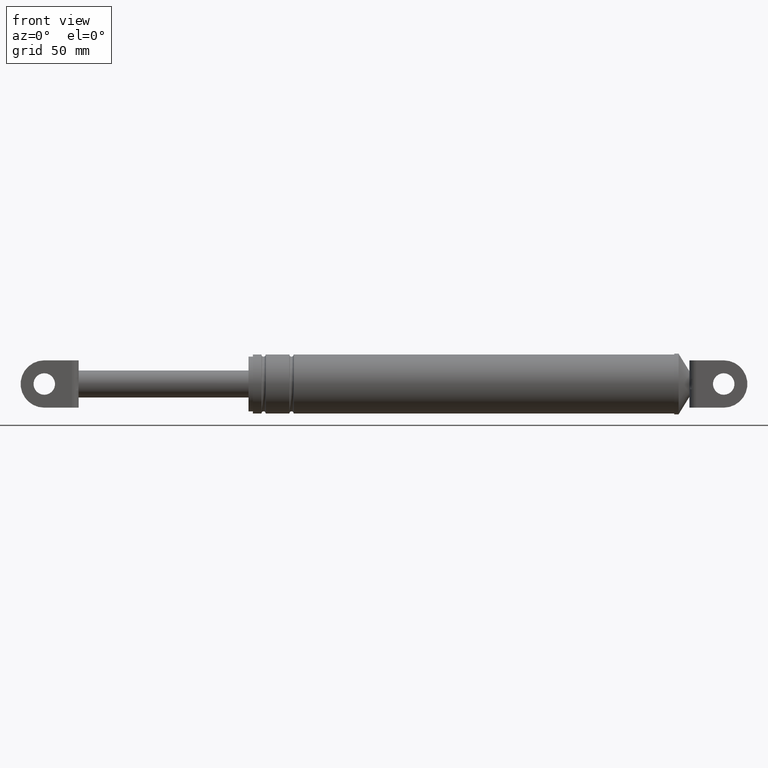
[diagram: clean part render]
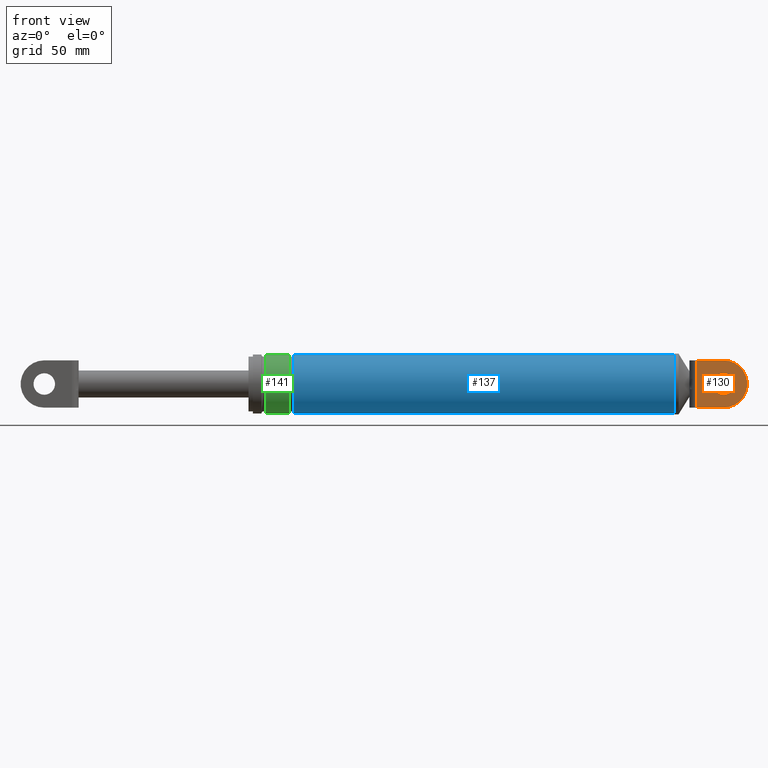
[diagram: same view with three faces highlighted in distinct colors, each labeled with its STEP entity id]
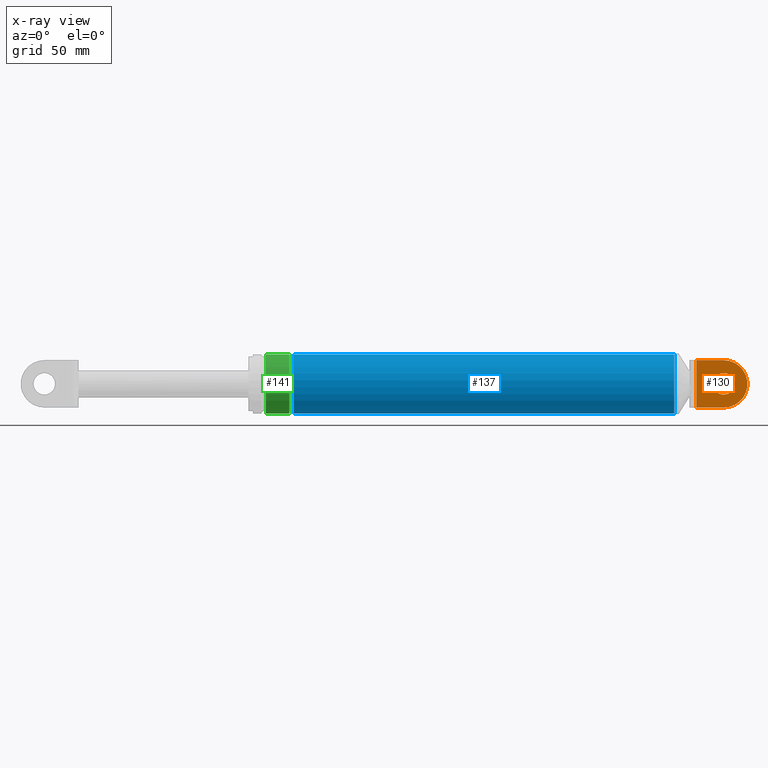
[diagram: x-ray of the same camera — body ghosted, the three highlighted faces saturated]
A machine part, front view with three faces highlighted in distinct colors.
The next image is the same camera in x-ray (body ghosted, the three faces saturated) — at least one of them is partly hidden behind the body in this view.
Their STEP definitions:

[orange] entity #130 — the highlighted planar face has unit normal (0, -1, 0).
#130=ADVANCED_FACE('',(#361,#362),#360,.T.);
#360=PLANE('',#1331);
#361=FACE_OUTER_BOUND('',#1332,.T.);
#362=FACE_BOUND('',#1333,.T.);
#1328=CARTESIAN_POINT('',(3.62948174188E+002,-8.69999700000E+000,1.74614500045E+002));
#1329=DIRECTION('',(0.00000000000E+000,-1.00000000000E+000,0.00000000000E+000));
#1330=DIRECTION('',(1.00000000000E+000,0.00000000000E+000,0.00000000000E+000));
#1331=AXIS2_PLACEMENT_3D('',#1328,#1329,#1330);
#1332=EDGE_LOOP('',(#2019,#2020,#2021,#2022,#2023,#2024));
#1333=EDGE_LOOP('',(#2025,#2026));
#2019=ORIENTED_EDGE('',*,*,#2283,.F.);
#2020=ORIENTED_EDGE('',*,*,#2264,.T.);
#2021=ORIENTED_EDGE('',*,*,#2266,.T.);
#2022=ORIENTED_EDGE('',*,*,#2269,.T.);
#2023=ORIENTED_EDGE('',*,*,#2279,.T.);
#2024=ORIENTED_EDGE('',*,*,#2252,.T.);
#2025=ORIENTED_EDGE('',*,*,#2301,.F.);
#2026=ORIENTED_EDGE('',*,*,#2302,.F.);
#2252=EDGE_CURVE('',#2474,#2467,#2475,.T.);
#2264=EDGE_CURVE('',#2536,#2550,#2557,.T.);
#2266=EDGE_CURVE('',#2550,#2564,#2571,.T.);
#2269=EDGE_CURVE('',#2564,#2583,#2591,.T.);
#2279=EDGE_CURVE('',#2583,#2474,#2654,.T.);
#2283=EDGE_CURVE('',#2536,#2467,#2680,.T.);
#2301=EDGE_CURVE('',#2801,#2802,#2803,.T.);
#2302=EDGE_CURVE('',#2802,#2801,#2809,.T.);
#2467=VERTEX_POINT('',#3476);
#2474=VERTEX_POINT('',#3480);
#2475=CIRCLE('',#3484,1.10000000000E+001);
#2536=VERTEX_POINT('',#3527);
#2550=VERTEX_POINT('',#3536);
#2557=LINE('',#3541,#3542);
#2564=VERTEX_POINT('',#3545);
#2571=(BOUNDED_CURVE() B_SPLINE_CURVE(3,(#3550,#3551,#3552,#3553,#3554,#3555,#3556,#3557,#3558,#3559),.UNSPECIFIED.,.F.,.F.) B_SPLINE_CURVE_WITH_KNOTS((4,2,2,2,4),(0.00000000000E+000,1.19890467989E-003,2.39780935978E-003,3.59671403966E-003,4.79561871955E-003),.UNSPECIFIED.) CURVE() GEOMETRIC_REPRESENTATION_ITEM() RATIONAL_B_SPLINE_CURVE((1.00000000000E+000,1.00000000000E+000,1.00000000000E+000,1.00000000000E+000,1.00000000000E+000,1.00000000000E+000,1.00000000000E+000,1.00000000000E+000,1.00000000000E+000,1.00000000000E+000)) REPRESENTATION_ITEM('') );
#2583=VERTEX_POINT('',#3564);
#2591=LINE('',#3570,#3571);
#2654=LINE('',#3605,#3606);
#2680=LINE('',#3620,#3621);
#2801=VERTEX_POINT('',#3701);
#2802=VERTEX_POINT('',#3702);
#2803=CIRCLE('',#3706,5.00000000000E+000);
#2809=CIRCLE('',#3710,5.00000000000E+000);
#3476=CARTESIAN_POINT('',(3.78171412952E+002,-8.69999700000E+000,1.98814501197E+002));
#3480=CARTESIAN_POINT('',(3.78171412952E+002,-8.69999700000E+000,1.76814501197E+002));
#3481=CARTESIAN_POINT('',(3.78171413912E+002,-8.69999700000E+000,1.87814501197E+002));
#3482=DIRECTION('',(0.00000000000E+000,-1.00000000000E+000,-0.00000000000E+000));
#3483=DIRECTION('',(-8.72664508346E-008,0.00000000000E+000,-1.00000000000E+000));
#3484=AXIS2_PLACEMENT_3D('',#3481,#3482,#3483);
#3527=CARTESIAN_POINT('',(3.65371413912E+002,-8.69999700000E+000,1.98814501197E+002));
#3536=CARTESIAN_POINT('',(3.65371413912E+002,-8.69999700000E+000,1.90212423839E+002));
#3541=CARTESIAN_POINT('',(3.65371413912E+002,-8.69999700000E+000,1.98814501197E+002));
#3542=VECTOR('',#3543,8.60207735738E+000);
#3543=DIRECTION('',(0.00000000000E+000,0.00000000000E+000,-1.00000000000E+000));
#3545=CARTESIAN_POINT('',(3.65371413912E+002,-8.69999700000E+000,1.85416578554E+002));
#3550=CARTESIAN_POINT('',(3.65371413912E+002,-8.69999700000E+000,1.90212423839E+002));
#3551=CARTESIAN_POINT('',(3.65371413912E+002,-8.69999700000E+000,1.89812767753E+002));
#3552=CARTESIAN_POINT('',(3.65359788567E+002,-8.69999700000E+000,1.89413231393E+002));
#3553=CARTESIAN_POINT('',(3.65339929641E+002,-8.69999700000E+000,1.88614123743E+002));
#3554=CARTESIAN_POINT('',(3.65332114059E+002,-8.69999700000E+000,1.88214548147E+002));
#3555=CARTESIAN_POINT('',(3.65332105072E+002,-8.69999700000E+000,1.87415236067E+002));
#3556=CARTESIAN_POINT('',(3.65339915744E+002,-8.69999700000E+000,1.87015477860E+002));
#3557=CARTESIAN_POINT('',(3.65359779216E+002,-8.69999700000E+000,1.86216107261E+002));
#3558=CARTESIAN_POINT('',(3.65371413912E+002,-8.69999700000E+000,1.85816454682E+002));
#3559=CARTESIAN_POINT('',(3.65371413912E+002,-8.69999700000E+000,1.85416578554E+002));
#3564=CARTESIAN_POINT('',(3.65371413912E+002,-8.69999700000E+000,1.76814501197E+002));
#3570=CARTESIAN_POINT('',(3.65371413912E+002,-8.69999700000E+000,1.85416578554E+002));
#3571=VECTOR('',#3572,8.60207735738E+000);
#3572=DIRECTION('',(0.00000000000E+000,0.00000000000E+000,-1.00000000000E+000));
#3605=CARTESIAN_POINT('',(3.65371413912E+002,-8.69999700000E+000,1.76814501197E+002));
#3606=VECTOR('',#3607,1.27999990401E+001);
#3607=DIRECTION('',(1.00000000000E+000,0.00000000000E+000,0.00000000000E+000));
#3620=CARTESIAN_POINT('',(3.65371413912E+002,-8.69999700000E+000,1.98814501197E+002));
#3621=VECTOR('',#3622,1.27999990401E+001);
#3622=DIRECTION('',(1.00000000000E+000,0.00000000000E+000,0.00000000000E+000));
#3701=CARTESIAN_POINT('',(3.78171413912E+002,-8.69999700000E+000,1.82814501197E+002));
#3702=CARTESIAN_POINT('',(3.78171413912E+002,-8.69999700000E+000,1.92814501197E+002));
#3703=CARTESIAN_POINT('',(3.78171413912E+002,-8.69999700000E+000,1.87814501197E+002));
#3704=DIRECTION('',(1.25607396695E-016,-1.00000000000E+000,0.00000000000E+000));
#3705=DIRECTION('',(1.22460635382E-016,1.53819616079E-032,1.00000000000E+000));
#3706=AXIS2_PLACEMENT_3D('',#3703,#3704,#3705);
#3707=CARTESIAN_POINT('',(3.78171413912E+002,-8.69999700000E+000,1.87814501197E+002));
#3708=DIRECTION('',(1.25607396695E-016,-1.00000000000E+000,0.00000000000E+000));
#3709=DIRECTION('',(1.22460635382E-016,1.53819616079E-032,1.00000000000E+000));
#3710=AXIS2_PLACEMENT_3D('',#3707,#3708,#3709);

[blue] entity #137 — the highlighted cylindrical surface (edge-blend (fillet) strip) has radius 13.7 mm, axis along (-1, 0, 0).
#137=ADVANCED_FACE('',(#433),#432,.T.);
#432=CYLINDRICAL_SURFACE('',#1380,1.37000000000E+001);
#433=FACE_OUTER_BOUND('',#1381,.T.);
#1377=CARTESIAN_POINT('',(1.68171413912E+002,5.61264061524E-014,1.87814501196E+002));
#1378=DIRECTION('',(-1.00000000000E+000,1.46694769862E-015,9.46212769247E-030));
#1379=DIRECTION('',(1.54719453813E-029,4.09681796733E-015,1.00000000000E+000));
#1380=AXIS2_PLACEMENT_3D('',#1377,#1378,#1379);
#1381=EDGE_LOOP('',(#2057,#2058,#2059,#2060));
#2057=ORIENTED_EDGE('',*,*,#2290,.T.);
#2058=ORIENTED_EDGE('',*,*,#2312,.T.);
#2059=ORIENTED_EDGE('',*,*,#2314,.F.);
#2060=ORIENTED_EDGE('',*,*,#2313,.F.);
#2290=EDGE_CURVE('',#2719,#2718,#2726,.T.);
#2312=EDGE_CURVE('',#2718,#2867,#2875,.T.);
#2313=EDGE_CURVE('',#2719,#2868,#2881,.T.);
#2314=EDGE_CURVE('',#2868,#2867,#2887,.T.);
#2718=VERTEX_POINT('',#3642);
#2719=VERTEX_POINT('',#3643);
#2726=CIRCLE('',#3651,1.37000000000E+001);
#2867=VERTEX_POINT('',#3739);
#2868=VERTEX_POINT('',#3740);
#2875=(BOUNDED_CURVE() B_SPLINE_CURVE(1,(#3745,#3746),.UNSPECIFIED.,.F.,.F.) B_SPLINE_CURVE_WITH_KNOTS((2,2),(5.07614212110E-002,9.49238578566E-001),.UNSPECIFIED.) CURVE() GEOMETRIC_REPRESENTATION_ITEM() RATIONAL_B_SPLINE_CURVE((1.00000000000E+000,1.00000000000E+000)) REPRESENTATION_ITEM('') );
#2881=(BOUNDED_CURVE() B_SPLINE_CURVE(1,(#3747,#3748),.UNSPECIFIED.,.F.,.F.) B_SPLINE_CURVE_WITH_KNOTS((2,2),(5.07614213198E-002,9.49238578680E-001),.UNSPECIFIED.) CURVE() GEOMETRIC_REPRESENTATION_ITEM() RATIONAL_B_SPLINE_CURVE((7.50000000000E-001,7.50000000000E-001)) REPRESENTATION_ITEM('') );
#2887=CIRCLE('',#3752,1.37000000000E+001);
#3642=CARTESIAN_POINT('',(3.55171413912E+002,-2.43953005944E-013,2.01514501196E+002));
#3643=CARTESIAN_POINT('',(3.55171413912E+002,5.80823664894E-015,1.74114501196E+002));
#3648=CARTESIAN_POINT('',(3.55171413912E+002,-1.17412024792E-013,1.87814501196E+002));
#3649=DIRECTION('',(-1.00000000000E+000,0.00000000000E+000,0.00000000000E+000));
#3650=DIRECTION('',(-0.00000000000E+000,9.31580824167E-015,-1.00000000000E+000));
#3651=AXIS2_PLACEMENT_3D('',#3648,#3649,#3650);
#3739=CARTESIAN_POINT('',(1.78171413912E+002,-2.43953005944E-013,2.01514501196E+002));
#3740=CARTESIAN_POINT('',(1.78171413912E+002,5.80823664894E-015,1.74114501196E+002));
#3745=CARTESIAN_POINT('',(3.55171413933E+002,-1.62066407369E-013,2.01514501196E+002));
#3746=CARTESIAN_POINT('',(1.78171413935E+002,9.75833352855E-014,2.01514501196E+002));
#3747=CARTESIAN_POINT('',(3.55171413912E+002,-2.74286327811E-013,1.74114501197E+002));
#3748=CARTESIAN_POINT('',(1.78171413912E+002,-1.46677180648E-014,1.74114501197E+002));
#3749=CARTESIAN_POINT('',(1.78171413912E+002,-1.17412024792E-013,1.87814501196E+002));
#3750=DIRECTION('',(-1.00000000000E+000,0.00000000000E+000,0.00000000000E+000));
#3751=DIRECTION('',(-0.00000000000E+000,9.31580824167E-015,-1.00000000000E+000));
#3752=AXIS2_PLACEMENT_3D('',#3749,#3750,#3751);

[green] entity #141 — the highlighted cylindrical surface (edge-blend (fillet) strip) has radius 13.7 mm, axis along (-1, 0, -0).
#141=ADVANCED_FACE('',(#473),#472,.T.);
#472=CYLINDRICAL_SURFACE('',#1442,1.37000000000E+001);
#473=FACE_OUTER_BOUND('',#1443,.T.);
#1439=CARTESIAN_POINT('',(1.64071413912E+002,1.60526971163E-014,1.87814501196E+002));
#1440=DIRECTION('',(-1.00000000000E+000,7.33473849312E-016,-6.00258385943E-031));
#1441=DIRECTION('',(2.59174719586E-031,1.17172971652E-015,1.00000000000E+000));
#1442=AXIS2_PLACEMENT_3D('',#1439,#1440,#1441);
#1443=EDGE_LOOP('',(#2073,#2074,#2075,#2076));
#2073=ORIENTED_EDGE('',*,*,#2315,.T.);
#2074=ORIENTED_EDGE('',*,*,#2320,.T.);
#2075=ORIENTED_EDGE('',*,*,#2322,.F.);
#2076=ORIENTED_EDGE('',*,*,#2321,.F.);
#2315=EDGE_CURVE('',#2893,#2894,#2895,.T.);
#2320=EDGE_CURVE('',#2894,#2919,#2927,.T.);
#2321=EDGE_CURVE('',#2893,#2920,#2933,.T.);
#2322=EDGE_CURVE('',#2920,#2919,#2939,.T.);
#2893=VERTEX_POINT('',#3753);
#2894=VERTEX_POINT('',#3754);
#2895=CIRCLE('',#3758,1.37000000000E+001);
#2919=VERTEX_POINT('',#3773);
#2920=VERTEX_POINT('',#3774);
#2927=(BOUNDED_CURVE() B_SPLINE_CURVE(1,(#3779,#3780),.UNSPECIFIED.,.F.,.F.) B_SPLINE_CURVE_WITH_KNOTS((2,2),(8.33333343261E-002,9.16666667006E-001),.UNSPECIFIED.) CURVE() GEOMETRIC_REPRESENTATION_ITEM() RATIONAL_B_SPLINE_CURVE((1.00000000000E+000,1.00000000000E+000)) REPRESENTATION_ITEM('') );
#2933=(BOUNDED_CURVE() B_SPLINE_CURVE(1,(#3781,#3782),.UNSPECIFIED.,.F.,.F.) B_SPLINE_CURVE_WITH_KNOTS((2,2),(8.33333333333E-002,9.16666666667E-001),.UNSPECIFIED.) CURVE() GEOMETRIC_REPRESENTATION_ITEM() RATIONAL_B_SPLINE_CURVE((7.50000000000E-001,7.50000000000E-001)) REPRESENTATION_ITEM('') );
#2939=CIRCLE('',#3786,1.37000000000E+001);
#3753=CARTESIAN_POINT('',(1.76171413912E+002,5.80823664894E-015,1.74114501196E+002));
#3754=CARTESIAN_POINT('',(1.76171413912E+002,-2.43953005944E-013,2.01514501196E+002));
#3755=CARTESIAN_POINT('',(1.76171413912E+002,-1.17412024792E-013,1.87814501196E+002));
#3756=DIRECTION('',(-1.00000000000E+000,7.33473849312E-016,-6.19621115700E-030));
#3757=DIRECTION('',(1.30291128875E-029,9.31580824167E-015,-1.00000000000E+000));
#3758=AXIS2_PLACEMENT_3D('',#3755,#3756,#3757);
#3773=CARTESIAN_POINT('',(1.65171413912E+002,-3.73034936274E-014,2.01514501196E+002));
#3774=CARTESIAN_POINT('',(1.65171413912E+002,4.19492862162E-015,1.74114501196E+002));
#3779=CARTESIAN_POINT('',(1.76171413899E+002,2.32303606656E-014,2.01514501196E+002));
#3780=CARTESIAN_POINT('',(1.65171413908E+002,3.12985730017E-014,2.01514501196E+002));
#3781=CARTESIAN_POINT('',(1.76171413912E+002,-9.76996261670E-015,1.74114501196E+002));
#3782=CARTESIAN_POINT('',(1.65171413912E+002,-8.88178419700E-016,1.74114501196E+002));
#3783=CARTESIAN_POINT('',(1.65171413912E+002,-1.78323129188E-014,1.87814501196E+002));
#3784=DIRECTION('',(-1.00000000000E+000,7.33473849312E-016,-8.64888924820E-031));
#3785=DIRECTION('',(1.95436693312E-030,1.48536721428E-015,-1.00000000000E+000));
#3786=AXIS2_PLACEMENT_3D('',#3783,#3784,#3785);